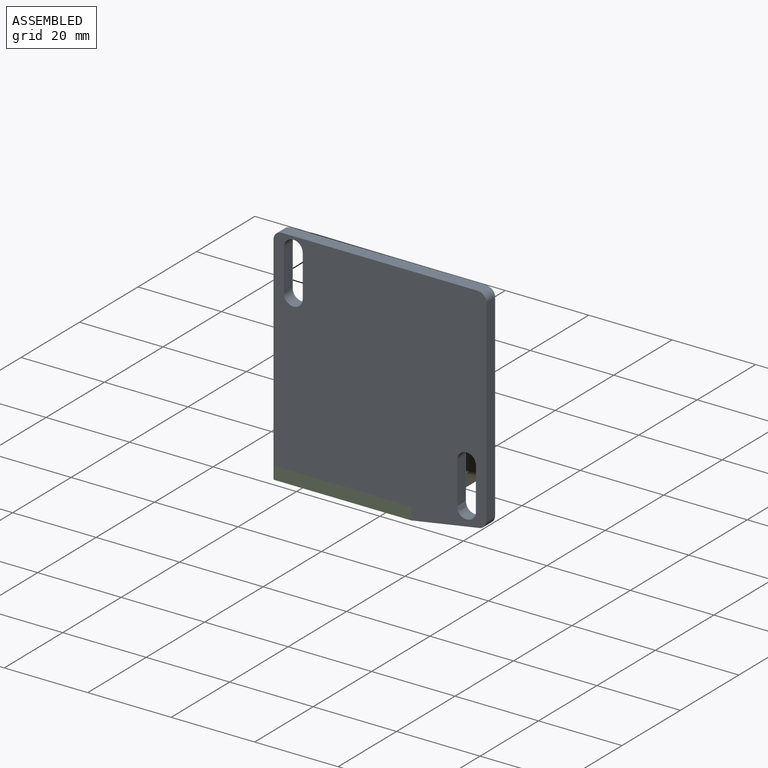
[diagram: assembled view]
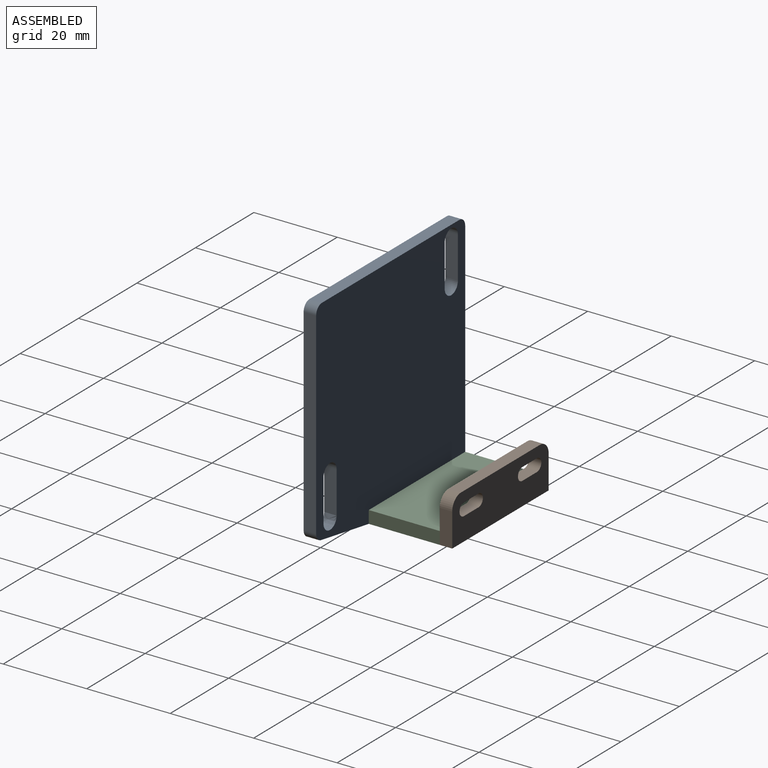
[diagram: assembled view, second angle]
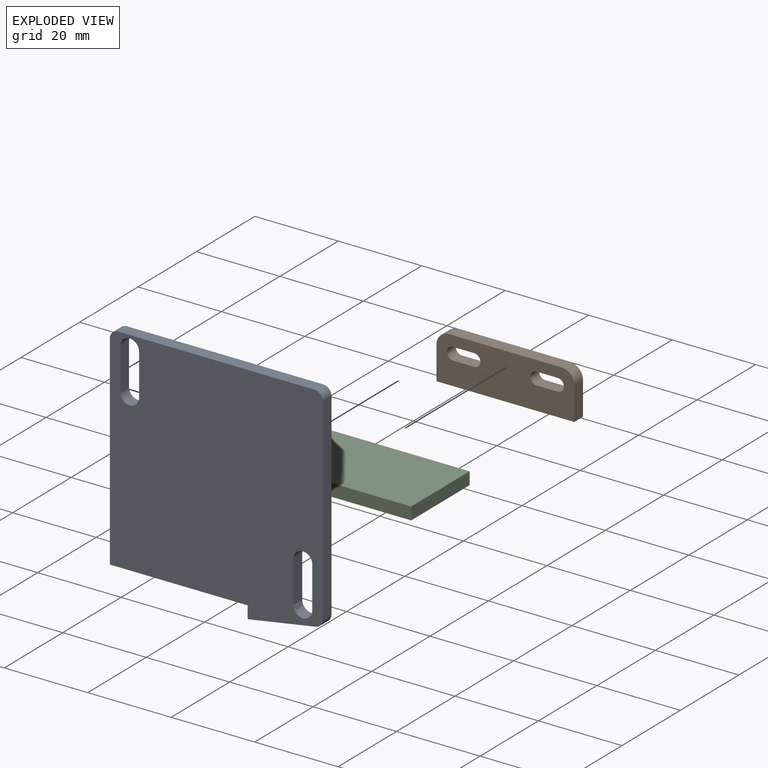
[diagram: exploded view]
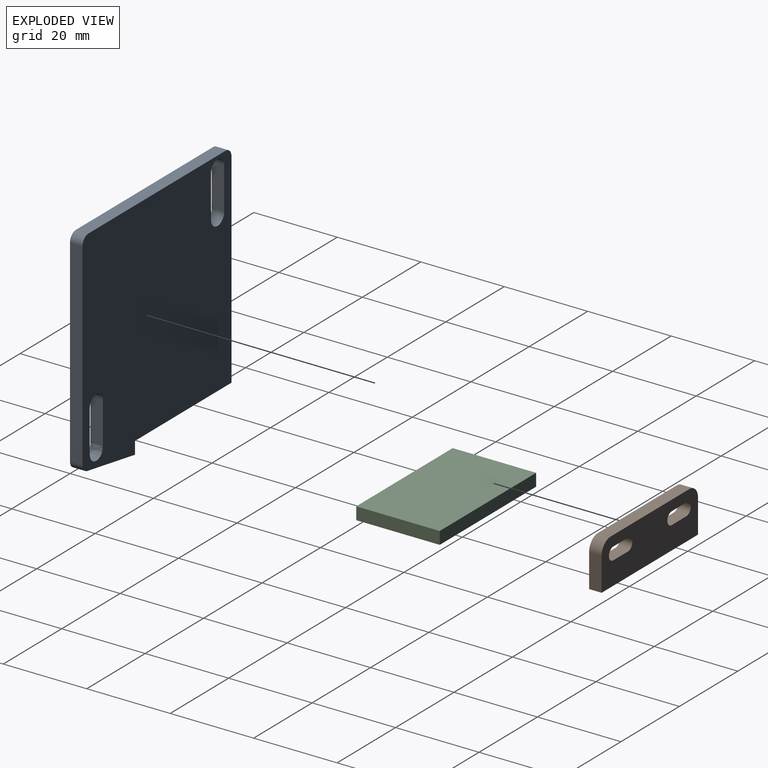
[diagram: exploded view, second angle]
ASSEMBLY  parts=3 mates=2
PART A: 19 faces, bbox 51x3x54 mm
  f0: plane 33x3mm, normal (0,0,-1), area 99mm2, adj f1,f13,f14,f15
  f1: plane 3x3mm, normal (-1,0,0), area 9mm2, adj f0,f2,f14,f15
  f2: plane 16.33x3mm, normal (0.16,0,-0.99), area 49.7mm2, adj f1,f14,f15,f16
  f3: plane 47.31x3mm, normal (1,0,0), area 141.9mm2, adj f14,f15,f16,f17
  f4: plane 47x3mm, normal (0,0,1), area 141mm2, adj f14,f15,f17,f18
  f5: plane 10x3mm, normal (1,0,0), area 30mm2, adj f6,f11,f14,f15
  f6: cylinder r=2.25mm len=4.5mm, axis (0,1,0), area 21.2mm2, adj f5,f7,f14,f15
  f7: plane 10x3mm, normal (-1,0,0), area 30mm2, adj f6,f11,f14,f15
  f8: extruded ~4.5x3mm, area 21.2mm2, adj f9,f12,f14,f15
  f9: plane 10x3mm, normal (1,0,0), area 30mm2, adj f8,f10,f14,f15
  f10: cylinder r=2.25mm len=4.5mm, axis (0,1,0), area 21.2mm2, adj f9,f12,f14,f15
  f11: cylinder r=2.25mm len=4.5mm, axis (0,1,0), area 21.2mm2, adj f5,f7,f14,f15
  f12: plane 10x3mm, normal (-1,0,0), area 30mm2, adj f8,f10,f14,f15
  f13: plane 49x3mm, normal (-1,0,0), area 147mm2, adj f0,f14,f15,f18
  f14: plane 54x51mm, normal (0,-1,0), area 2503.9mm2, adj f0,f1,f2,f3,f4,f5,f6,f7
  f15: plane 54x51mm, normal (0,1,0), area 2503.9mm2, adj f0,f1,f2,f3,f4,f5,f6,f7
  f16: cylinder r=2mm len=3mm, axis (0,1,0), area 8.4mm2, adj f2,f3,f14,f15
  f17: cylinder r=2mm len=3mm, axis (0,-1,0), area 9.4mm2, adj f3,f4,f14,f15
  f18: cylinder r=2mm len=3mm, axis (0,1,0), area 9.4mm2, adj f4,f13,f14,f15
PART B: 16 faces, bbox 33x3x11 mm
  f0: plane 4.99x3mm, normal (0,0,-1), area 15mm2, adj f1,f11,f12,f13
  f1: cylinder r=1.5mm len=3mm, axis (0,-1,0), area 14.1mm2, adj f0,f2,f12,f13
  f2: plane 5x3mm, normal (0,0,1), area 15mm2, adj f1,f11,f12,f13
  f3: cylinder r=1.5mm len=3mm, axis (0,-1,0), area 14.7mm2, adj f4,f9,f12,f13
  f4: plane 5x3mm, normal (0,0,-1), area 15mm2, adj f3,f5,f12,f13
  f5: cylinder r=1.5mm len=3mm, axis (0,-1,0), area 14.1mm2, adj f4,f9,f12,f13
  f6: plane 33x3mm, normal (0,0,-1), area 99mm2, adj f7,f10,f12,f13
  f7: plane 8x3mm, normal (1,0,0), area 24mm2, adj f6,f12,f13,f14
  f8: plane 27x3mm, normal (0,0,1), area 81mm2, adj f12,f13,f14,f15
  f9: plane 4.8x3mm, normal (0,0,1), area 14.4mm2, adj f3,f5,f12,f13
  f10: plane 8x3mm, normal (-1,0,0), area 24mm2, adj f6,f12,f13,f15
  f11: cylinder r=1.5mm len=3mm, axis (0,-1,0), area 14.2mm2, adj f0,f2,f12,f13
  f12: plane 33x11mm, normal (0,1,0), area 315mm2, adj f0,f1,f2,f3,f4,f5,f6,f7
  f13: plane 33x11mm, normal (0,-1,0), area 315mm2, adj f0,f1,f2,f3,f4,f5,f6,f7
  f14: cylinder r=3mm len=3mm, axis (0,1,0), area 14.1mm2, adj f7,f8,f12,f13
  f15: cylinder r=3mm len=3mm, axis (0,-1,0), area 14.1mm2, adj f8,f10,f12,f13
PART C: 6 faces, bbox 33x20x3 mm
  f0: plane 33x20mm, normal (0,0,-1), area 660mm2, adj f1,f3,f4,f5
  f1: plane 20x3mm, normal (1,0,0), area 60mm2, adj f0,f2,f4,f5
  f2: plane 33x20mm, normal (0,0,1), area 660mm2, adj f1,f3,f4,f5
  f3: plane 20x3mm, normal (-1,0,0), area 60mm2, adj f0,f2,f4,f5
  f4: plane 33x3mm, normal (0,-1,0), area 99mm2, adj f0,f1,f2,f3
  f5: plane 33x3mm, normal (0,1,0), area 99mm2, adj f0,f1,f2,f3
PLACE A t=(-138.34,-37.12,-93.88)mm
PLACE B t=(-148.92,-20.12,-91.38)mm
PLACE C t=(-148.92,-20.12,-91.38)mm
MATE fastened A.f14 <-> C.f4  axis (0,-1,0) through (-148.92,-40.12,-93.88)mm
MATE fastened B.f13 <-> C.f5  axis (0,-1,0) through (-148.92,-20.12,-96.88)mm
